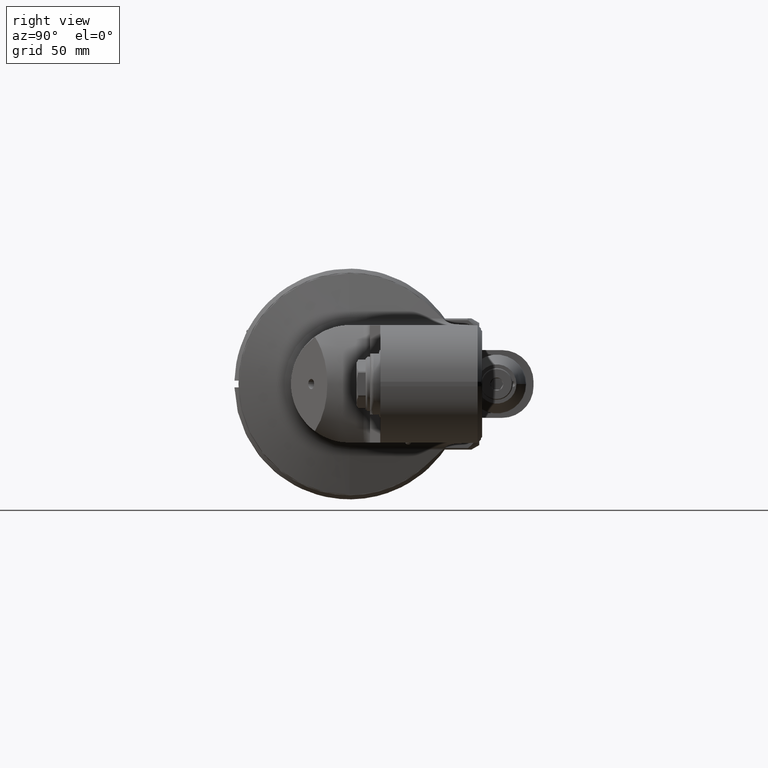
[diagram: clean part render]
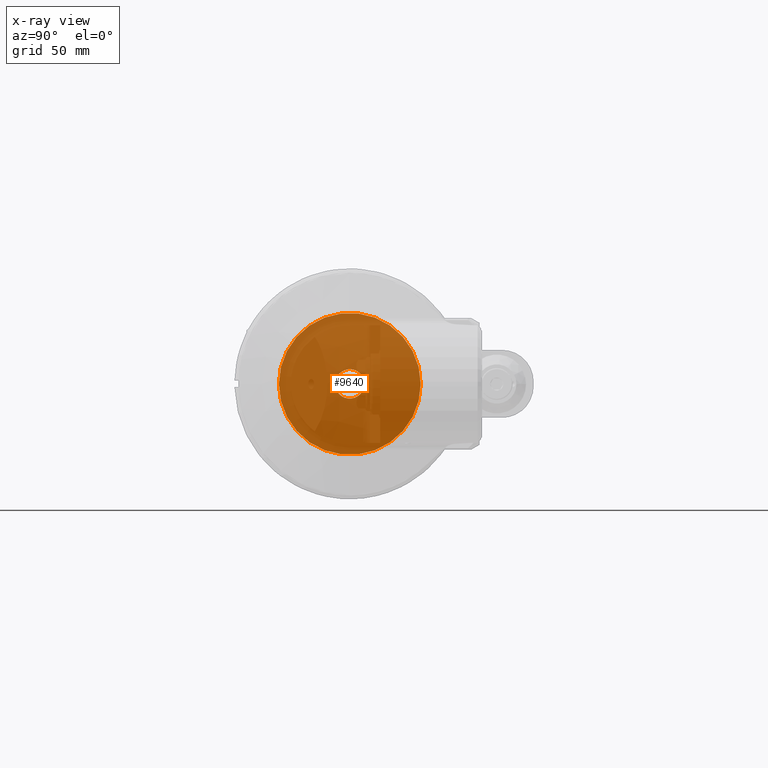
[diagram: x-ray — body ghosted, one internal face saturated and labeled with its STEP entity id]
A machine part, right view, then the same camera in x-ray: the body is ghosted and one INTERNAL B-rep face — a face not visible from any outside direction — is saturated and labeled: STEP entity #9640.
In plain terms, the highlighted planar face has unit normal (1, 0, -0).
Its self-contained STEP definition (entity closure, byte-faithful):
#153=FACE_BOUND('',#1692,.T.);
#512=PLANE('',#10551);
#1055=FACE_OUTER_BOUND('',#1691,.T.);
#1691=EDGE_LOOP('',(#7815));
#1692=EDGE_LOOP('',(#7816));
#2283=CIRCLE('',#10527,31.35);
#2292=CIRCLE('',#10552,6.5);
#4463=VERTEX_POINT('',#46355);
#4486=VERTEX_POINT('',#46452);
#5639=EDGE_CURVE('',#4463,#4463,#2283,.T.);
#5676=EDGE_CURVE('',#4486,#4486,#2292,.T.);
#7815=ORIENTED_EDGE('',*,*,#5639,.T.);
#7816=ORIENTED_EDGE('',*,*,#5676,.T.);
#9640=ADVANCED_FACE('',(#1055,#153),#512,.T.);
#10527=AXIS2_PLACEMENT_3D('',#46357,#12419,#12420);
#10551=AXIS2_PLACEMENT_3D('',#46451,#12485,#12486);
#10552=AXIS2_PLACEMENT_3D('',#46453,#12487,#12488);
#12419=DIRECTION('center_axis',(1.,0.,0.));
#12420=DIRECTION('ref_axis',(0.,1.,-1.400901549979E-9));
#12485=DIRECTION('center_axis',(1.,0.,0.));
#12486=DIRECTION('ref_axis',(0.,1.,-1.400901672444E-9));
#12487=DIRECTION('center_axis',(-1.,0.,0.));
#12488=DIRECTION('ref_axis',(0.,-1.,0.));
#46355=CARTESIAN_POINT('',(-44.0000000000002,31.35,-4.391826744364E-8));
#46357=CARTESIAN_POINT('Origin',(-44.0000000000002,0.,0.));
#46451=CARTESIAN_POINT('Origin',(-44.0000000000002,0.,0.));
#46452=CARTESIAN_POINT('',(-44.0000000000001,6.5,0.));
#46453=CARTESIAN_POINT('Origin',(-44.,0.,0.));